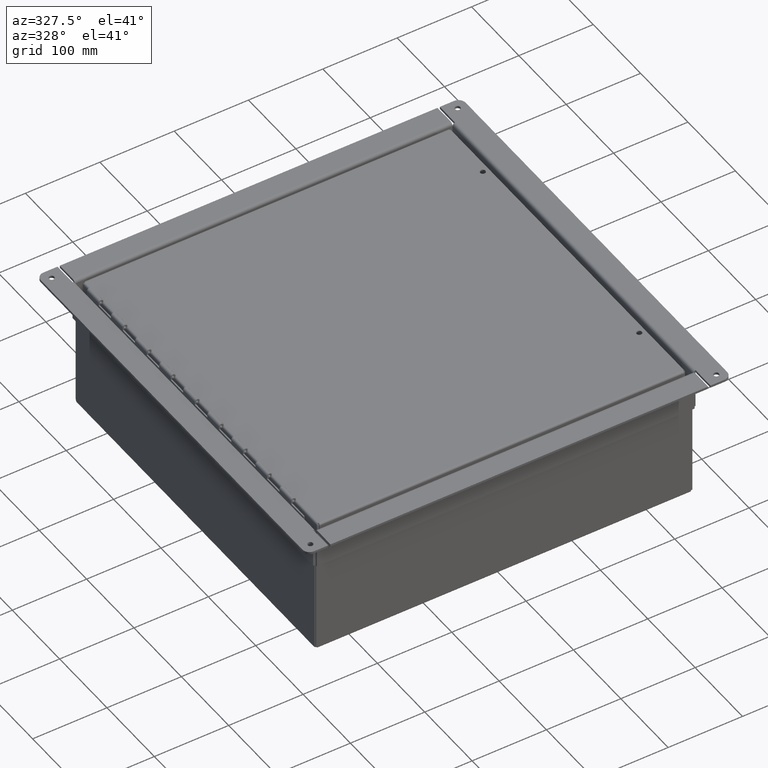
[diagram: clean part render]
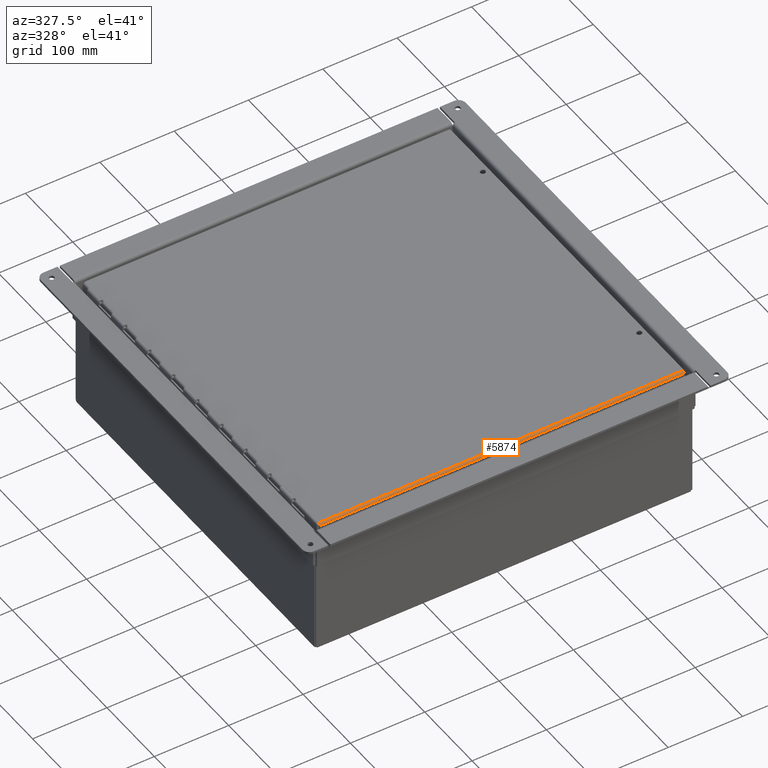
[diagram: same view with one face highlighted and labeled with its STEP entity id]
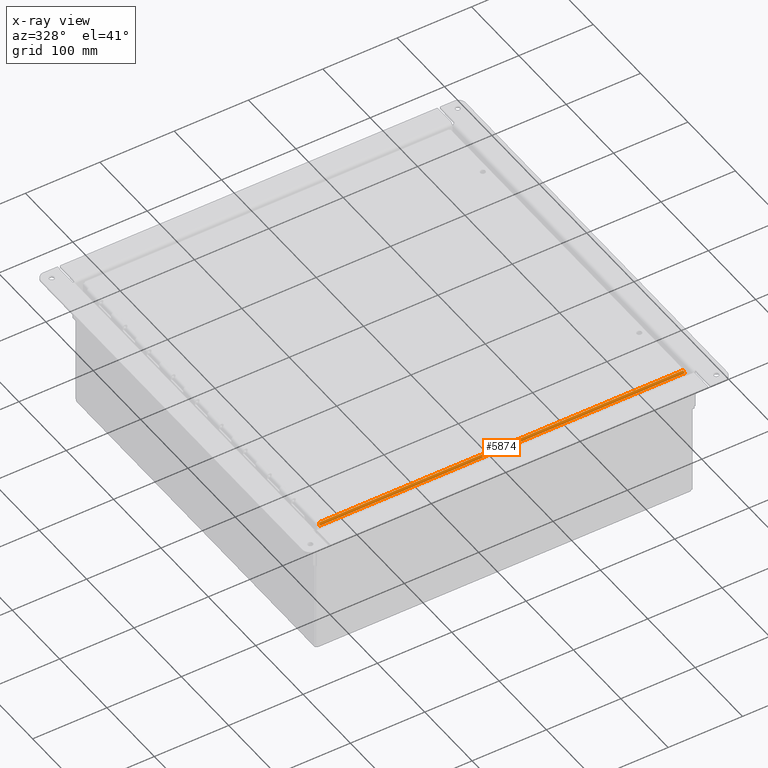
[diagram: x-ray of the same camera — body ghosted, the highlighted face saturated]
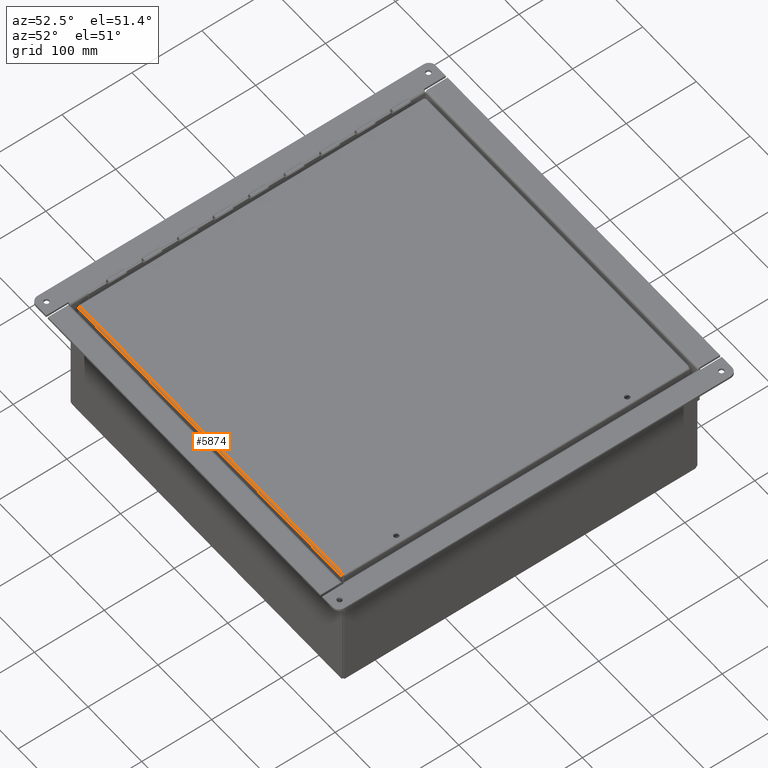
[diagram: same view with one face highlighted and labeled with its STEP entity id]
A machine part, auxiliary view. The second image highlights one B-rep face of the part: STEP entity #5874.
The next image is the same camera in x-ray: the body ghosted, the highlighted face saturated — about 0% of this face is hidden behind the body in this view.
A second angle (auxiliary view) of the same face is appended — the face is thin or edge-on in the first view.
In plain terms, the highlighted cylindrical surface (edge-blend (fillet) strip) has radius 2.6733 mm, axis along (1, 0, -0).
Its self-contained STEP definition (entity closure, byte-faithful):
#352=B_SPLINE_CURVE_WITH_KNOTS($,3,(#10034,#10035,#10036,#10037,#10038,
#10039,#10040),.UNSPECIFIED.,.F.,.F.,(4,3,4),(0.,0.673198425769219,1.57079632679484),
 .UNSPECIFIED.);
#353=B_SPLINE_CURVE_WITH_KNOTS($,3,(#10043,#10044,#10045,#10046,#10047,
#10048,#10049),.UNSPECIFIED.,.F.,.F.,(4,3,4),(0.,0.673198425769232,1.57079632679487),
 .UNSPECIFIED.);
#776=FACE_OUTER_BOUND($,#1125,.T.);
#1125=EDGE_LOOP($,(#4471,#4472,#4473,#4474));
#1650=LINE($,#10033,#2198);
#1651=LINE($,#10042,#2199);
#2198=VECTOR($,#7240,19.3299029130879);
#2199=VECTOR($,#7241,19.2895);
#2677=VERTEX_POINT($,#9941);
#2685=VERTEX_POINT($,#10031);
#2686=VERTEX_POINT($,#10032);
#2687=VERTEX_POINT($,#10041);
#3318=EDGE_CURVE($,#2685,#2686,#1650,.T.);
#3319=EDGE_CURVE($,#2677,#2685,#352,.T.);
#3320=EDGE_CURVE($,#2687,#2677,#1651,.T.);
#3321=EDGE_CURVE($,#2686,#2687,#353,.T.);
#4471=ORIENTED_EDGE($,*,*,#3318,.F.);
#4472=ORIENTED_EDGE($,*,*,#3319,.F.);
#4473=ORIENTED_EDGE($,*,*,#3320,.F.);
#4474=ORIENTED_EDGE($,*,*,#3321,.F.);
#5309=CYLINDRICAL_SURFACE($,#6265,0.10525);
#5874=ADVANCED_FACE($,(#776),#5309,.T.);
#6265=AXIS2_PLACEMENT_3D($,#10030,#7238,#7239);
#7238=DIRECTION('center_axis',(1.,1.434570433596E-016,0.));
#7239=DIRECTION('ref_axis',(0.,0.,1.));
#7240=DIRECTION($,(-1.,-1.43091346691328E-016,-1.97121579620824E-033));
#7241=DIRECTION($,(1.,1.45022543119946E-016,0.));
#9941=CARTESIAN_POINT('',(9.64475,-9.70725,0.074));
#10030=CARTESIAN_POINT('Origin',(4.19611851826831E-015,-9.70725,-0.0312499999999995));
#10031=CARTESIAN_POINT('',(9.66495145654396,-9.8125,-0.0312499999999968));
#10032=CARTESIAN_POINT('',(-9.66495145654396,-9.8125,-0.0312499999999982));
#10033=CARTESIAN_POINT($,(2.35833573044613E-015,-9.8125,-0.0312499999999995));
#10034=CARTESIAN_POINT('Ctrl Pts',(9.64475000000001,-9.70725,0.074));
#10035=CARTESIAN_POINT('Ctrl Pts',(9.64763592236343,-9.73086804477074,0.074));
#10036=CARTESIAN_POINT('Ctrl Pts',(9.65052184472685,-9.75451542254503,0.0657423812059112));
#10037=CARTESIAN_POINT('Ctrl Pts',(9.65340776709027,-9.7728872437998,0.0510150996893863));
#10038=CARTESIAN_POINT('Ctrl Pts',(9.65725566357484,-9.79738300547282,0.0313787243340197));
#10039=CARTESIAN_POINT('Ctrl Pts',(9.6611035600594,-9.8125,0.000240726360988937));
#10040=CARTESIAN_POINT('Ctrl Pts',(9.66495145654396,-9.8125,-0.031249999999993));
#10041=CARTESIAN_POINT('',(-9.64475,-9.70725,0.074));
#10042=CARTESIAN_POINT($,(-4.822375,-9.70725,0.074));
#10043=CARTESIAN_POINT('Ctrl Pts',(-9.66495145654396,-9.8125,-0.031249999999996));
#10044=CARTESIAN_POINT('Ctrl Pts',(-9.66206553418054,-9.8125,-0.00763195522925914));
#10045=CARTESIAN_POINT('Ctrl Pts',(-9.65917961181711,-9.80424238120591,
0.0160154225450395));
#10046=CARTESIAN_POINT('Ctrl Pts',(-9.65629368945369,-9.78951509968939,
0.0343872437998031));
#10047=CARTESIAN_POINT('Ctrl Pts',(-9.65244579296913,-9.76987872433402,
0.0588830054728212));
#10048=CARTESIAN_POINT('Ctrl Pts',(-9.64859789648456,-9.73874072636099,
0.0739999999999991));
#10049=CARTESIAN_POINT('Ctrl Pts',(-9.64475,-9.70725000000001,0.074));